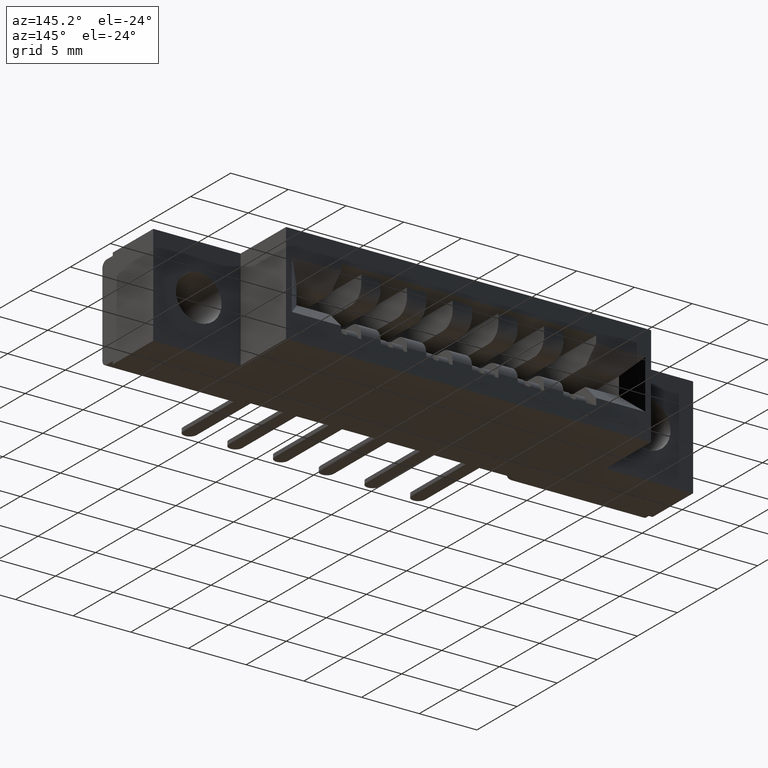
[diagram: clean part render]
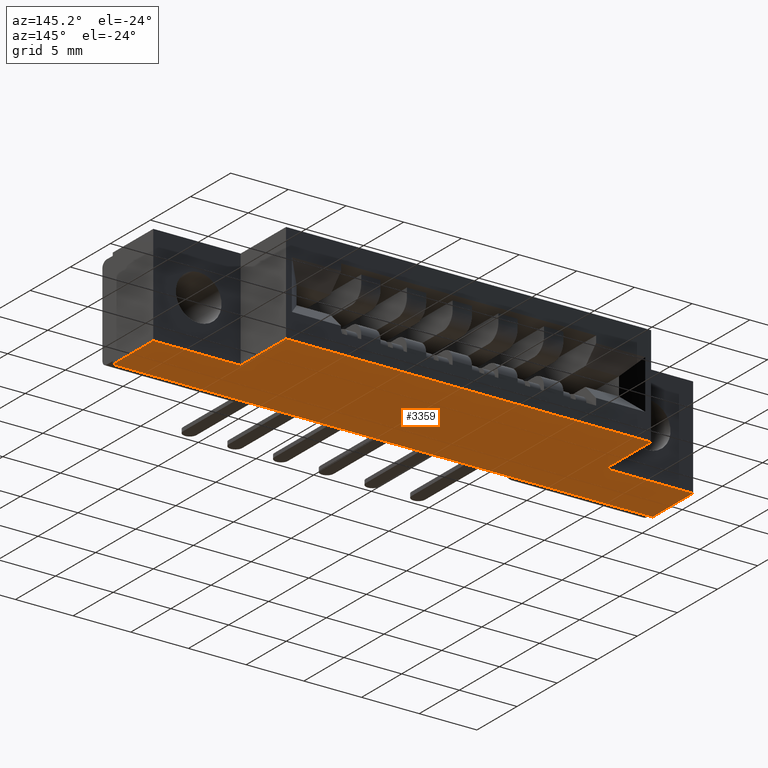
[diagram: same view with one face highlighted and labeled with its STEP entity id]
A machine part, auxiliary view. The second image highlights one B-rep face of the part: STEP entity #3359.
In plain terms, the highlighted planar face has unit normal (0, 0, 1).
Its self-contained STEP definition (entity closure, byte-faithful):
#73 = CARTESIAN_POINT ( 'NONE',  ( 1.842000000000000700, 0.2499999999999999700, -0.3430000000000000300 ) ) ;
#112 = DIRECTION ( 'NONE',  ( 1.000000000000000000, 0.0000000000000000000, -0.0000000000000000000 ) ) ;
#243 = VECTOR ( 'NONE', #2846, 39.37007874015748100 ) ;
#303 = EDGE_CURVE ( 'NONE', #993, #7868, #4595, .T. ) ;
#424 = AXIS2_PLACEMENT_3D ( 'NONE', #4447, #4351, #112 ) ;
#473 = DIRECTION ( 'NONE',  ( -0.0000000000000000000, -1.000000000000000000, -0.0000000000000000000 ) ) ;
#584 = DIRECTION ( 'NONE',  ( -1.000000000000000000, -0.0000000000000000000, -0.0000000000000000000 ) ) ;
#618 = CARTESIAN_POINT ( 'NONE',  ( 0.4730000000000003600, 0.05099999999999999700, -0.3429999999999999200 ) ) ;
#793 = VECTOR ( 'NONE', #1235, 39.37007874015748100 ) ;
#832 = EDGE_CURVE ( 'NONE', #2742, #7795, #4109, .T. ) ;
#900 = LINE ( 'NONE', #6244, #5374 ) ;
#975 = DIRECTION ( 'NONE',  ( -1.000000000000000000, 0.0000000000000000000, 0.0000000000000000000 ) ) ;
#993 = VERTEX_POINT ( 'NONE', #7590 ) ;
#1032 = EDGE_CURVE ( 'NONE', #7791, #8030, #1369, .T. ) ;
#1165 = VECTOR ( 'NONE', #473, 39.37007874015748100 ) ;
#1235 = DIRECTION ( 'NONE',  ( 1.000000000000000000, 0.0000000000000000000, 0.0000000000000000000 ) ) ;
#1369 = LINE ( 'NONE', #4638, #3893 ) ;
#1389 = EDGE_CURVE ( 'NONE', #8030, #2742, #5022, .T. ) ;
#1416 = CARTESIAN_POINT ( 'NONE',  ( 1.842000000000000700, 0.4729999999999999800, -0.3430000000000000300 ) ) ;
#1596 = ORIENTED_EDGE ( 'NONE', *, *, #9401, .T. ) ;
#1849 = EDGE_LOOP ( 'NONE', ( #1596, #4305, #3748, #4727, #8662, #5553, #6682, #9339 ) ) ;
#2742 = VERTEX_POINT ( 'NONE', #4235 ) ;
#2830 = EDGE_CURVE ( 'NONE', #7791, #3088, #9168, .T. ) ;
#2846 = DIRECTION ( 'NONE',  ( -0.0000000000000000000, 1.000000000000000000, -0.0000000000000000000 ) ) ;
#3088 = VERTEX_POINT ( 'NONE', #3940 ) ;
#3359 = ADVANCED_FACE ( 'NONE', ( #8914 ), #8888, .F. ) ;
#3748 = ORIENTED_EDGE ( 'NONE', *, *, #1389, .F. ) ;
#3824 = CARTESIAN_POINT ( 'NONE',  ( 0.2980000000000001000, 0.2499999999999999700, -0.3430000000000000300 ) ) ;
#3893 = VECTOR ( 'NONE', #975, 39.37007874015748100 ) ;
#3940 = CARTESIAN_POINT ( 'NONE',  ( 0.2980000000000001000, 0.4729999999999999800, -0.3430000000000000300 ) ) ;
#4109 = LINE ( 'NONE', #618, #793 ) ;
#4235 = CARTESIAN_POINT ( 'NONE',  ( 0.0000000000000000000, 0.05099999999999999700, -0.3430000000000000300 ) ) ;
#4305 = ORIENTED_EDGE ( 'NONE', *, *, #832, .F. ) ;
#4351 = DIRECTION ( 'NONE',  ( 0.0000000000000000000, 0.0000000000000000000, 1.000000000000000000 ) ) ;
#4447 = CARTESIAN_POINT ( 'NONE',  ( 0.0000000000000000000, 0.4729999999999999800, -0.3430000000000000300 ) ) ;
#4572 = CARTESIAN_POINT ( 'NONE',  ( 1.842000000000000700, 0.05099999999999999700, -0.3430000000000000300 ) ) ;
#4595 = LINE ( 'NONE', #8067, #243 ) ;
#4638 = CARTESIAN_POINT ( 'NONE',  ( 0.0000000000000000000, 0.2499999999999999700, -0.3430000000000000300 ) ) ;
#4727 = ORIENTED_EDGE ( 'NONE', *, *, #1032, .F. ) ;
#4849 = CARTESIAN_POINT ( 'NONE',  ( 1.544000000000000700, 0.4729999999999999800, -0.3430000000000000300 ) ) ;
#4976 = CARTESIAN_POINT ( 'NONE',  ( 0.0000000000000000000, 0.4729999999999999800, -0.3430000000000000300 ) ) ;
#5022 = LINE ( 'NONE', #8207, #5731 ) ;
#5105 = VECTOR ( 'NONE', #584, 39.37007874015748100 ) ;
#5374 = VECTOR ( 'NONE', #6155, 39.37007874015748100 ) ;
#5452 = VECTOR ( 'NONE', #8738, 39.37007874015748100 ) ;
#5553 = ORIENTED_EDGE ( 'NONE', *, *, #8230, .F. ) ;
#5731 = VECTOR ( 'NONE', #5990, 39.37007874015748100 ) ;
#5990 = DIRECTION ( 'NONE',  ( -0.0000000000000000000, -1.000000000000000000, -0.0000000000000000000 ) ) ;
#6155 = DIRECTION ( 'NONE',  ( -1.000000000000000000, 0.0000000000000000000, 0.0000000000000000000 ) ) ;
#6244 = CARTESIAN_POINT ( 'NONE',  ( 0.0000000000000000000, 0.2499999999999999700, -0.3430000000000000300 ) ) ;
#6402 = CARTESIAN_POINT ( 'NONE',  ( 0.2980000000000001000, 0.2499999999999999700, -0.3430000000000000300 ) ) ;
#6660 = VERTEX_POINT ( 'NONE', #73 ) ;
#6682 = ORIENTED_EDGE ( 'NONE', *, *, #303, .F. ) ;
#6824 = LINE ( 'NONE', #1416, #1165 ) ;
#6871 = EDGE_CURVE ( 'NONE', #6660, #993, #900, .T. ) ;
#7590 = CARTESIAN_POINT ( 'NONE',  ( 1.544000000000000700, 0.2499999999999999700, -0.3430000000000000300 ) ) ;
#7791 = VERTEX_POINT ( 'NONE', #3824 ) ;
#7795 = VERTEX_POINT ( 'NONE', #4572 ) ;
#7868 = VERTEX_POINT ( 'NONE', #4849 ) ;
#8030 = VERTEX_POINT ( 'NONE', #8678 ) ;
#8067 = CARTESIAN_POINT ( 'NONE',  ( 1.544000000000000700, 0.2499999999999999700, -0.3430000000000000300 ) ) ;
#8207 = CARTESIAN_POINT ( 'NONE',  ( 0.0000000000000000000, 0.4729999999999999800, -0.3430000000000000300 ) ) ;
#8230 = EDGE_CURVE ( 'NONE', #7868, #3088, #8239, .T. ) ;
#8239 = LINE ( 'NONE', #4976, #5105 ) ;
#8662 = ORIENTED_EDGE ( 'NONE', *, *, #2830, .T. ) ;
#8678 = CARTESIAN_POINT ( 'NONE',  ( 0.0000000000000000000, 0.2499999999999999700, -0.3430000000000000300 ) ) ;
#8738 = DIRECTION ( 'NONE',  ( -0.0000000000000000000, 1.000000000000000000, -0.0000000000000000000 ) ) ;
#8888 = PLANE ( 'NONE',  #424 ) ;
#8914 = FACE_OUTER_BOUND ( 'NONE', #1849, .T. ) ;
#9168 = LINE ( 'NONE', #6402, #5452 ) ;
#9339 = ORIENTED_EDGE ( 'NONE', *, *, #6871, .F. ) ;
#9401 = EDGE_CURVE ( 'NONE', #6660, #7795, #6824, .T. ) ;